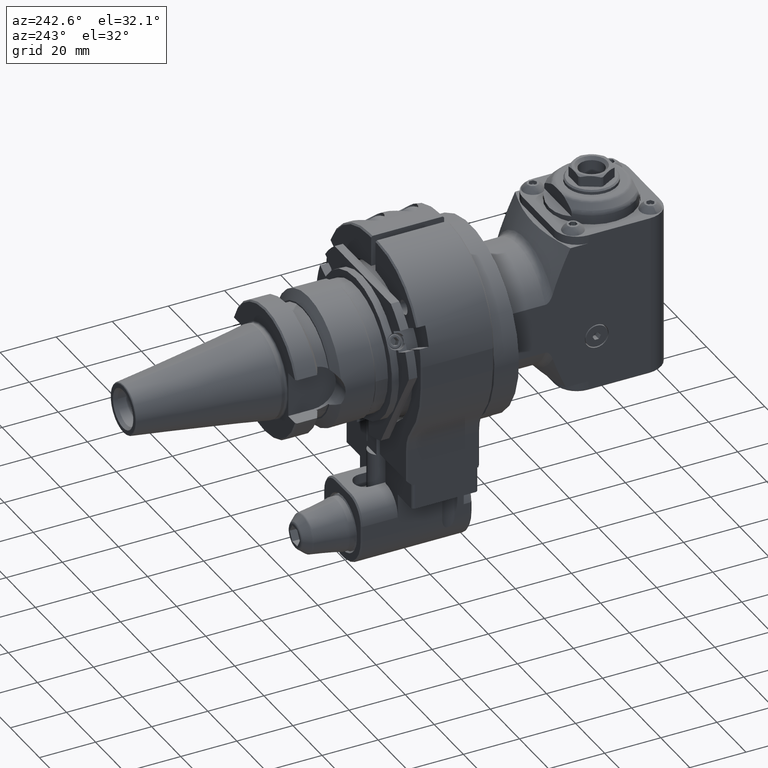
[diagram: clean part render]
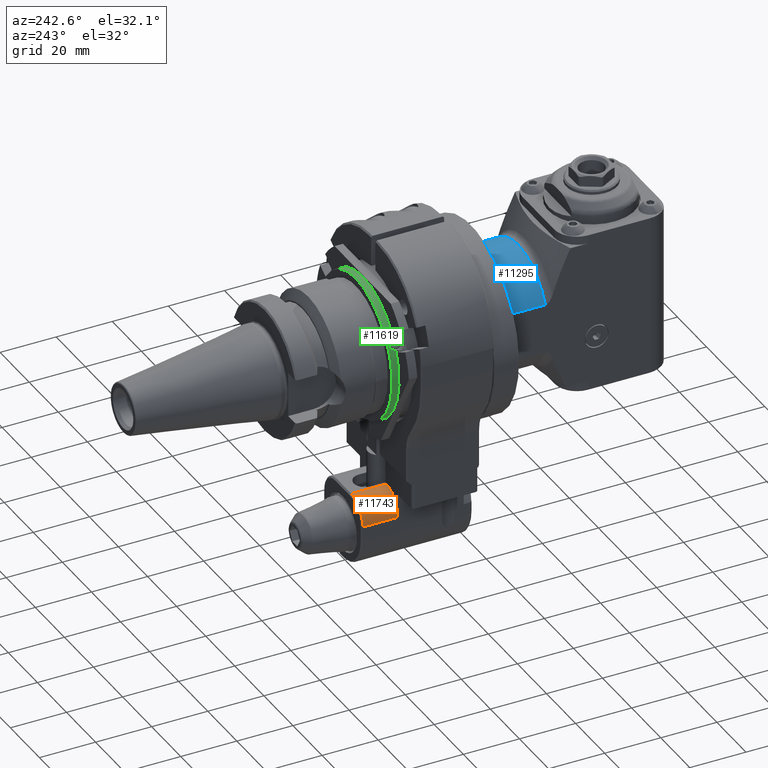
[diagram: same view with three faces highlighted in distinct colors, each labeled with its STEP entity id]
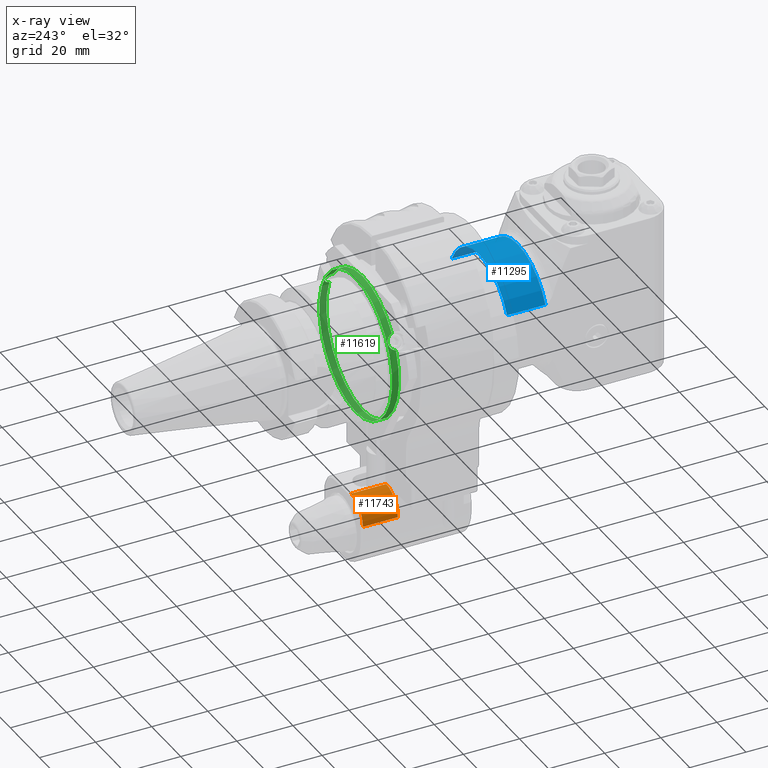
[diagram: x-ray of the same camera — body ghosted, the three highlighted faces saturated]
A machine part, auxiliary view with three faces highlighted in distinct colors.
The next image is the same camera in x-ray (body ghosted, the three faces saturated) — at least one of them is partly hidden behind the body in this view.
Their STEP definitions:

[orange] entity #11743 — the highlighted cylindrical surface (edge-blend (fillet) strip) has radius 8 mm, axis along (0, 1, 0).
#1085=LINE('',#20093,#1950);
#1125=LINE('',#20266,#1990);
#1950=VECTOR('',#15758,12.49999995534);
#1990=VECTOR('',#15870,12.49999995534);
#2321=CYLINDRICAL_SURFACE('',#12956,8.);
#3007=FACE_OUTER_BOUND('',#3811,.T.);
#3811=EDGE_LOOP('',(#9885,#9886,#9887,#9888));
#4505=CIRCLE('',#12955,8.);
#4506=CIRCLE('',#12957,8.);
#5478=VERTEX_POINT('',#20090);
#5479=VERTEX_POINT('',#20092);
#5524=VERTEX_POINT('',#20258);
#5525=VERTEX_POINT('',#20265);
#6980=EDGE_CURVE('',#5479,#5478,#1085,.T.);
#7042=EDGE_CURVE('',#5524,#5478,#4505,.T.);
#7044=EDGE_CURVE('',#5524,#5525,#1125,.T.);
#7045=EDGE_CURVE('',#5479,#5525,#4506,.T.);
#9885=ORIENTED_EDGE('',*,*,#7042,.F.);
#9886=ORIENTED_EDGE('',*,*,#7044,.T.);
#9887=ORIENTED_EDGE('',*,*,#7045,.F.);
#9888=ORIENTED_EDGE('',*,*,#6980,.T.);
#11743=ADVANCED_FACE('',(#3007),#2321,.T.);
#12955=AXIS2_PLACEMENT_3D('',#20262,#15865,#15866);
#12956=AXIS2_PLACEMENT_3D('',#20264,#15868,#15869);
#12957=AXIS2_PLACEMENT_3D('',#20267,#15871,#15872);
#15758=DIRECTION('',(0.,1.,0.));
#15865=DIRECTION('center_axis',(0.,1.,0.));
#15866=DIRECTION('ref_axis',(-1.,0.,0.));
#15868=DIRECTION('center_axis',(0.,1.,0.));
#15869=DIRECTION('ref_axis',(0.,0.,1.));
#15870=DIRECTION('',(0.,-1.,0.));
#15871=DIRECTION('center_axis',(0.,-1.,0.));
#15872=DIRECTION('ref_axis',(0.,0.,1.));
#20090=CARTESIAN_POINT('',(-4.99999999999983,36.5,-51.5));
#20092=CARTESIAN_POINT('',(-4.99999999999983,24.00000004466,-51.5));
#20093=CARTESIAN_POINT('',(-4.99999999999983,24.00000004466,-51.5));
#20258=CARTESIAN_POINT('',(-12.9999999999998,36.5,-59.5));
#20262=CARTESIAN_POINT('Origin',(-4.99999999999983,36.5,-59.5));
#20264=CARTESIAN_POINT('Origin',(-4.99999999999983,25.,-59.5));
#20265=CARTESIAN_POINT('',(-12.9999999999998,24.00000004466,-59.5));
#20266=CARTESIAN_POINT('',(-12.9999999999998,36.5,-59.5));
#20267=CARTESIAN_POINT('Origin',(-4.99999999999983,24.00000004466,-59.5));

[blue] entity #11295 — the highlighted cylindrical surface (partial cylindrical patch) has radius 21 mm, axis along (-0, 1, 0).
#483=LINE('',#17158,#1348);
#501=LINE('',#17223,#1366);
#1348=VECTOR('',#13482,13.69059892276);
#1366=VECTOR('',#13540,13.69059892324);
#2210=CYLINDRICAL_SURFACE('',#12136,21.);
#2559=FACE_OUTER_BOUND('',#3292,.T.);
#3292=EDGE_LOOP('',(#7732,#7733,#7734,#7735));
#4136=CIRCLE('',#12135,21.);
#4137=CIRCLE('',#12137,21.);
#4734=VERTEX_POINT('',#17009);
#4753=VERTEX_POINT('',#17146);
#4754=VERTEX_POINT('',#17157);
#4778=VERTEX_POINT('',#17222);
#5877=EDGE_CURVE('',#4754,#4753,#483,.T.);
#5910=EDGE_CURVE('',#4778,#4734,#501,.T.);
#5949=EDGE_CURVE('',#4778,#4753,#4136,.T.);
#5950=EDGE_CURVE('',#4754,#4734,#4137,.T.);
#7732=ORIENTED_EDGE('',*,*,#5950,.F.);
#7733=ORIENTED_EDGE('',*,*,#5877,.T.);
#7734=ORIENTED_EDGE('',*,*,#5949,.F.);
#7735=ORIENTED_EDGE('',*,*,#5910,.T.);
#11295=ADVANCED_FACE('',(#2559),#2210,.T.);
#12135=AXIS2_PLACEMENT_3D('',#17312,#13625,#13626);
#12136=AXIS2_PLACEMENT_3D('',#17313,#13627,#13628);
#12137=AXIS2_PLACEMENT_3D('',#17314,#13629,#13630);
#13482=DIRECTION('',(1.,0.,0.));
#13540=DIRECTION('',(-1.,0.,0.));
#13625=DIRECTION('center_axis',(1.,0.,0.));
#13626=DIRECTION('ref_axis',(0.,-0.425917709999995,0.904761904761889));
#13627=DIRECTION('center_axis',(-1.,0.,0.));
#13628=DIRECTION('ref_axis',(0.,-1.,-1.22464679914735E-16));
#13629=DIRECTION('center_axis',(-1.,0.,0.));
#13630=DIRECTION('ref_axis',(0.,-1.,0.));
#17009=CARTESIAN_POINT('',(68.,-8.944271909999,19.));
#17146=CARTESIAN_POINT('',(81.69059892324,-8.944271909999,-19.));
#17157=CARTESIAN_POINT('',(68.,-8.944271909999,-19.));
#17158=CARTESIAN_POINT('',(68.,-8.944271909999,-19.));
#17222=CARTESIAN_POINT('',(81.69059892324,-8.944271909999,19.));
#17223=CARTESIAN_POINT('',(81.69059892324,-8.944271909999,19.));
#17312=CARTESIAN_POINT('Origin',(81.69059892324,0.,0.));
#17313=CARTESIAN_POINT('Origin',(73.9,0.,0.));
#17314=CARTESIAN_POINT('Origin',(68.,0.,0.));

[green] entity #11619 — the highlighted cylindrical surface (bore or boss wall) has radius 25 mm, axis along (0, 1, 0).
#369=B_SPLINE_CURVE_WITH_KNOTS('',3,(#19361,#19362,#19363,#19364,#19365,
#19366,#19367,#19368,#19369,#19370,#19371,#19372,#19373,#19374,#19375,#19376,
#19377,#19378),.UNSPECIFIED.,.F.,.F.,(4,2,2,2,2,2,2,2,4),(-0.780421409121407,
-0.725752297872131,-0.622073102347212,-0.518394424522868,-0.414715746698525,
-0.311037068874181,-0.207358391049838,-0.103679195524919,-0.0490100842756534),
 .UNSPECIFIED.);
#370=B_SPLINE_CURVE_WITH_KNOTS('',3,(#19382,#19383,#19384,#19385,#19386,
#19387,#19388,#19389,#19390,#19391,#19392,#19393,#19394,#19395,#19396,#19397,
#19398,#19399),.UNSPECIFIED.,.F.,.F.,(4,2,2,2,2,2,2,2,4),(-0.780421409121397,
-0.725752297872131,-0.622073102347212,-0.518394424522869,-0.414715746698525,
-0.311037068874182,-0.207358391049839,-0.103679195524919,-0.0490100842756432),
 .UNSPECIFIED.);
#926=LINE('',#19357,#1791);
#1791=VECTOR('',#15195,25.);
#2289=CYLINDRICAL_SURFACE('',#12718,25.);
#2883=FACE_OUTER_BOUND('',#3667,.T.);
#3667=EDGE_LOOP('',(#9257,#9258,#9259,#9260,#9261,#9262,#9263,#9264));
#4395=CIRCLE('',#12717,25.);
#4396=CIRCLE('',#12719,25.);
#4397=CIRCLE('',#12720,25.);
#4398=CIRCLE('',#12721,25.);
#5288=VERTEX_POINT('',#19353);
#5289=VERTEX_POINT('',#19356);
#5290=VERTEX_POINT('',#19358);
#5291=VERTEX_POINT('',#19360);
#5292=VERTEX_POINT('',#19379);
#5293=VERTEX_POINT('',#19381);
#6699=EDGE_CURVE('',#5288,#5288,#4395,.T.);
#6700=EDGE_CURVE('',#5288,#5289,#926,.T.);
#6701=EDGE_CURVE('',#5290,#5289,#4396,.T.);
#6702=EDGE_CURVE('',#5290,#5291,#369,.T.);
#6703=EDGE_CURVE('',#5292,#5291,#4397,.T.);
#6704=EDGE_CURVE('',#5292,#5293,#370,.T.);
#6705=EDGE_CURVE('',#5289,#5293,#4398,.T.);
#9257=ORIENTED_EDGE('',*,*,#6699,.F.);
#9258=ORIENTED_EDGE('',*,*,#6700,.T.);
#9259=ORIENTED_EDGE('',*,*,#6701,.F.);
#9260=ORIENTED_EDGE('',*,*,#6702,.T.);
#9261=ORIENTED_EDGE('',*,*,#6703,.F.);
#9262=ORIENTED_EDGE('',*,*,#6704,.T.);
#9263=ORIENTED_EDGE('',*,*,#6705,.F.);
#9264=ORIENTED_EDGE('',*,*,#6700,.F.);
#11619=ADVANCED_FACE('',(#2883),#2289,.T.);
#12717=AXIS2_PLACEMENT_3D('',#19354,#15191,#15192);
#12718=AXIS2_PLACEMENT_3D('',#19355,#15193,#15194);
#12719=AXIS2_PLACEMENT_3D('',#19359,#15196,#15197);
#12720=AXIS2_PLACEMENT_3D('',#19380,#15198,#15199);
#12721=AXIS2_PLACEMENT_3D('',#19400,#15200,#15201);
#15191=DIRECTION('center_axis',(0.,1.,0.));
#15192=DIRECTION('ref_axis',(0.,0.,1.));
#15193=DIRECTION('center_axis',(0.,1.,0.));
#15194=DIRECTION('ref_axis',(0.,0.,-1.));
#15195=DIRECTION('',(0.,-1.,0.));
#15196=DIRECTION('center_axis',(0.,-1.,0.));
#15197=DIRECTION('ref_axis',(0.806860979934107,0.,0.590741363931605));
#15198=DIRECTION('center_axis',(0.,-1.,0.));
#15199=DIRECTION('ref_axis',(-0.915027518198071,0.,0.403391423979587));
#15200=DIRECTION('center_axis',(0.,-1.,0.));
#15201=DIRECTION('ref_axis',(0.806860979934107,0.,0.590741363931605));
#19353=CARTESIAN_POINT('',(3.06161699786838E-15,32.30000004466,25.));
#19354=CARTESIAN_POINT('Origin',(0.,32.30000004466,0.));
#19355=CARTESIAN_POINT('Origin',(0.,31.55000004466,0.));
#19356=CARTESIAN_POINT('',(3.06161699786838E-15,29.8000000446597,25.));
#19357=CARTESIAN_POINT('',(3.06161699786838E-15,31.55000004466,25.));
#19358=CARTESIAN_POINT('',(20.17152449835,29.80000004466,14.76853409829));
#19359=CARTESIAN_POINT('Origin',(0.,29.80000004466,0.));
#19360=CARTESIAN_POINT('',(22.87568795495,29.80000004466,10.08478559949));
#19361=CARTESIAN_POINT('Ctrl Pts',(20.1715244983527,29.8000000446597,14.7685340982901));
#19362=CARTESIAN_POINT('Ctrl Pts',(20.1921185659404,29.9874356465864,14.7404057995638));
#19363=CARTESIAN_POINT('Ctrl Pts',(20.2247466269976,30.1741584953726,14.6957531001674));
#19364=CARTESIAN_POINT('Ctrl Pts',(20.3509023112538,30.6914974601775,14.5210427854543));
#19365=CARTESIAN_POINT('Ctrl Pts',(20.4742829084915,31.0005405046288,14.3479489591248));
#19366=CARTESIAN_POINT('Ctrl Pts',(20.7512578802109,31.4885456628379,13.9443607146899));
#19367=CARTESIAN_POINT('Ctrl Pts',(20.9233167592891,31.7001405649875,13.6868461704395));
#19368=CARTESIAN_POINT('Ctrl Pts',(21.2867756666825,31.98087546773,13.1144242731596));
#19369=CARTESIAN_POINT('Ctrl Pts',(21.4778372982363,32.05000004466,12.7992945627569));
#19370=CARTESIAN_POINT('Ctrl Pts',(21.8234328909841,32.05000004466,12.2007054372458));
#19371=CARTESIAN_POINT('Ctrl Pts',(22.0008124099032,31.98087546773,11.8776763554304));
#19372=CARTESIAN_POINT('Ctrl Pts',(22.3148148609335,31.7001405649875,11.2767007597561));
#19373=CARTESIAN_POINT('Ctrl Pts',(22.4517995585593,31.4885456628379,10.9989361274026));
#19374=CARTESIAN_POINT('Ctrl Pts',(22.662829745049,31.0005405046288,10.5572746434637));
#19375=CARTESIAN_POINT('Ctrl Pts',(22.7510430972698,30.6914974601775,10.3638769987569));
#19376=CARTESIAN_POINT('Ctrl Pts',(22.8392688259864,30.1741584953727,10.1672678140028));
#19377=CARTESIAN_POINT('Ctrl Pts',(22.8616251674826,29.9874356465865,10.1166847345528));
#19378=CARTESIAN_POINT('Ctrl Pts',(22.875687954951,29.8000000446598,10.0847855994914));
#19379=CARTESIAN_POINT('',(-22.87568795495,29.80000004466,10.08478559949));
#19380=CARTESIAN_POINT('Origin',(0.,29.80000004466,0.));
#19381=CARTESIAN_POINT('',(-20.17152449835,29.80000004466,14.76853409829));
#19382=CARTESIAN_POINT('Ctrl Pts',(-22.875687954951,29.8000000446598,10.0847855994914));
#19383=CARTESIAN_POINT('Ctrl Pts',(-22.8616251674826,29.9874356465865,10.1166847345528));
#19384=CARTESIAN_POINT('Ctrl Pts',(-22.8392688259864,30.1741584953727,10.1672678140028));
#19385=CARTESIAN_POINT('Ctrl Pts',(-22.7510430972698,30.6914974601775,10.3638769987569));
#19386=CARTESIAN_POINT('Ctrl Pts',(-22.662829745049,31.0005405046288,10.5572746434637));
#19387=CARTESIAN_POINT('Ctrl Pts',(-22.4517995585593,31.4885456628379,10.9989361274026));
#19388=CARTESIAN_POINT('Ctrl Pts',(-22.3148148609335,31.7001405649875,11.2767007597561));
#19389=CARTESIAN_POINT('Ctrl Pts',(-22.0008124099032,31.98087546773,11.8776763554304));
#19390=CARTESIAN_POINT('Ctrl Pts',(-21.8234328909841,32.05000004466,12.2007054372458));
#19391=CARTESIAN_POINT('Ctrl Pts',(-21.4778372982363,32.05000004466,12.7992945627569));
#19392=CARTESIAN_POINT('Ctrl Pts',(-21.2867756666825,31.98087546773,13.1144242731596));
#19393=CARTESIAN_POINT('Ctrl Pts',(-20.9233167592891,31.7001405649875,13.6868461704395));
#19394=CARTESIAN_POINT('Ctrl Pts',(-20.7512578802109,31.4885456628379,13.9443607146899));
#19395=CARTESIAN_POINT('Ctrl Pts',(-20.4742829084915,31.0005405046288,14.3479489591248));
#19396=CARTESIAN_POINT('Ctrl Pts',(-20.3509023112538,30.6914974601775,14.5210427854543));
#19397=CARTESIAN_POINT('Ctrl Pts',(-20.2247466269976,30.1741584953727,14.6957531001674));
#19398=CARTESIAN_POINT('Ctrl Pts',(-20.1921185659404,29.9874356465864,14.7404057995638));
#19399=CARTESIAN_POINT('Ctrl Pts',(-20.1715244983527,29.8000000446597,14.7685340982901));
#19400=CARTESIAN_POINT('Origin',(0.,29.80000004466,0.));